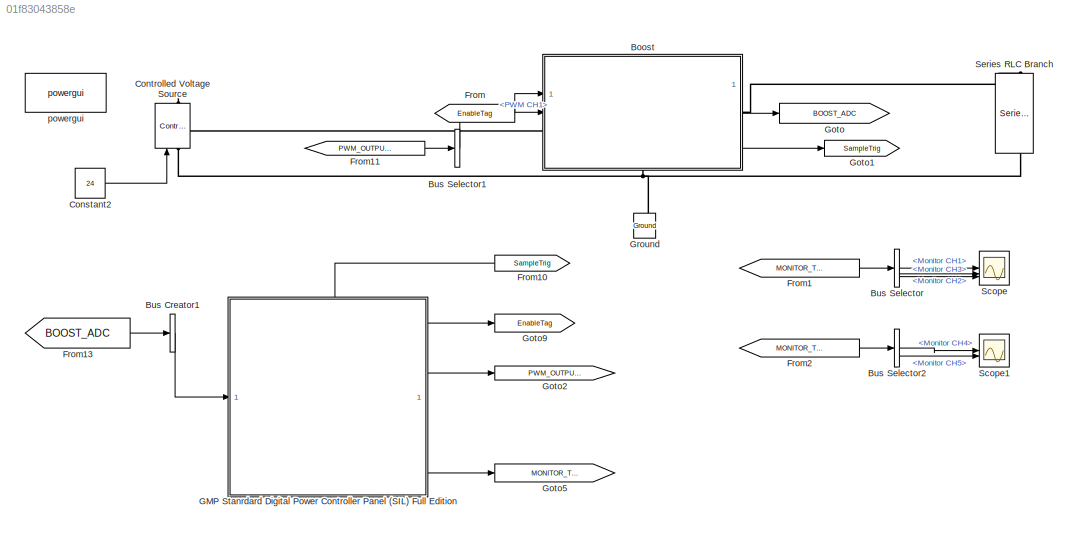
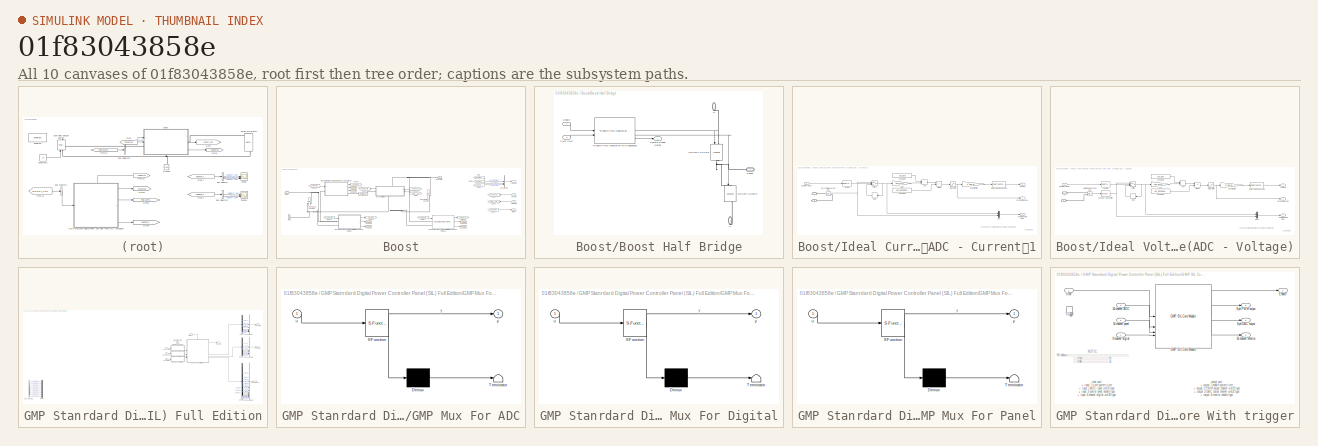
[diagram: thumbnail index - all 10 canvases of the model, root first then tree order]
MODEL slx_01f83043858e
KIND model
CONFIG AbsTol = auto
CONFIG EnableMultiTasking = off
CONFIG FixedStep = auto
CONFIG MaxStep = auto
CONFIG MinStep = auto
CONFIG RelTol = 1e-3
CONFIG SampleTimeConstraint = Unconstrained
CONFIG SolverName = VariableStepAuto
CONFIG StartTime = 0.0
CONFIG StopTime = 0.5
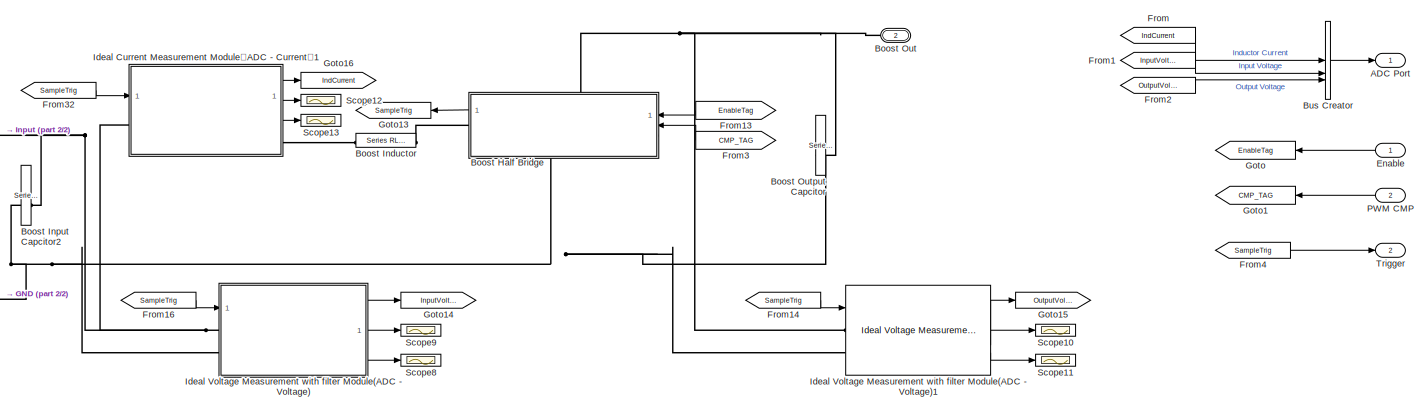
[diagram: Boost - part 1/2, most of the canvas]
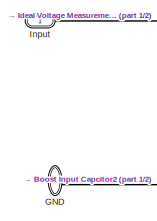
[diagram: Boost - part 2/2, middle left region]
BLOCK [SubSystem] Boost
  NameLocation = top
  PortSchema = {"entries":[{"content":{"sides":[{"content":{"connectorIds":["LConn1","In1","In2"]},"type":"ConnectorPlacement.EquallySpacedRectSide","uuid":"14f7e26c-4d08-496b-8d9c-39acdf23712e"},{"content":{"connectorIds":["RConn1","Out1","Out2"],"side":"RIGHT"},"type":"ConnectorPlacement.EquallySpacedRectSide","uuid":"c4fec36d-dc89-4255-810a-778c215f41bb"},{"content":{"side":"TOP"},"type":"ConnectorPlacement.E...<+405ch>
BLOCK [Outport] Boost/ADC Port
BLOCK [SubSystem] Boost/Boost Half Bridge
  PortSchema = {"entries":[{"content":{"sides":[{"content":{"connectorIds":["In1","In2"]},"type":"ConnectorPlacement.EquallySpacedRectSide","uuid":"20beeabc-b0ca-4337-b227-c7f02abd15d8"},{"content":{"connectorIds":["Out1","RConn1"],"side":"RIGHT"},"type":"ConnectorPlacement.EquallySpacedRectSide","uuid":"a7923383-ac55-4621-ad1d-4d067c1fb84d"},{"content":{"connectorIds":["LConn1"],"side":"TOP"},"type":"ConnectorP...<+415ch>
BLOCK [PMIOPort] Boost/Boost Half Bridge/D
  NameLocation = left
  Side = Left
BLOCK [Inport] Boost/Boost Half Bridge/Enable
BLOCK [Reference] Boost/Boost Half Bridge/MOSFET LOWER  REF=spsMosfetLib/Mosfet
  NameLocation = left
  SourceBlock = spsMosfetLib/Mosfet
  SourceType = Mosfet
BLOCK [Reference] Boost/Boost Half Bridge/MOSFET UPPER  REF=spsMosfetLib/Mosfet
  NameLocation = left
  SourceBlock = spsMosfetLib/Mosfet
  SourceType = Mosfet
BLOCK [Inport] Boost/Boost Half Bridge/PWM CMP
  Port = 2
BLOCK [PMIOPort] Boost/Boost Half Bridge/Phase
  Port = 2
  Side = Right
BLOCK [PMIOPort] Boost/Boost Half Bridge/S
  NameLocation = left
  Port = 3
  Side = Right
BLOCK [Outport] Boost/Boost Half Bridge/Sample Trigger Output
BLOCK [Reference] Boost/Boost Half Bridge/Triangle PWM modulation (with deadband)  REF=gmp_fp_utilities/Triangle PWM modulation (with deadband)
  SourceBlock = gmp_fp_utilities/Triangle PWM modulation (with deadband)
BLOCK [Reference] Boost/Boost Inductor  REF=spsSeriesRLCBranchLib/Series RLC Branch
  NameLocation = top
  SourceBlock = spsSeriesRLCBranchLib/Series RLC Branch
  SourceType = Series RLC Branch
BLOCK [Reference] Boost/Boost Input Capcitor2  REF=spsSeriesRLCBranchLib/Series RLC Branch
  NameLocation = left
  SourceBlock = spsSeriesRLCBranchLib/Series RLC Branch
  SourceType = Series RLC Branch
BLOCK [PMIOPort] Boost/Boost Out
  NameLocation = top
  Port = 2
  Side = Right
BLOCK [Reference] Boost/Boost Output Capcitor  REF=spsSeriesRLCBranchLib/Series RLC Branch
  NameLocation = left
  SourceBlock = spsSeriesRLCBranchLib/Series RLC Branch
  SourceType = Series RLC Branch
BLOCK [BusCreator] Boost/Bus Creator
  DisplayOption = bar
  InheritFromInputs = on
  Inputs = 3
BLOCK [Inport] Boost/Enable
  NameLocation = top
BLOCK [From] Boost/From
  GotoTag = IndCurrent
BLOCK [From] Boost/From1
  GotoTag = InputVoltage
BLOCK [From] Boost/From13
  GotoTag = EnableTag
  NameLocation = top
BLOCK [From] Boost/From14
  GotoTag = SampleTrig
  NameLocation = top
BLOCK [From] Boost/From16
  GotoTag = SampleTrig
  NameLocation = top
BLOCK [From] Boost/From2
  GotoTag = OutputVoltage
BLOCK [From] Boost/From3
  GotoTag = CMP_TAG
  NameLocation = top
BLOCK [From] Boost/From32
  GotoTag = SampleTrig
  NameLocation = top
BLOCK [From] Boost/From4
  GotoTag = SampleTrig
  NameLocation = top
BLOCK [PMIOPort] Boost/GND
  NameLocation = right
  Port = 3
  Side = Right
BLOCK [Goto] Boost/Goto
  GotoTag = EnableTag
BLOCK [Goto] Boost/Goto1
  GotoTag = CMP_TAG
BLOCK [Goto] Boost/Goto13
  GotoTag = SampleTrig
BLOCK [Goto] Boost/Goto14
  GotoTag = InputVoltage
  NameLocation = top
BLOCK [Goto] Boost/Goto15
  GotoTag = OutputVoltage
  NameLocation = top
BLOCK [Goto] Boost/Goto16
  GotoTag = IndCurrent
  NameLocation = top
BLOCK [SubSystem] Boost/Ideal Current Measurement Module（ADC - Current）1
BLOCK [PMIOPort] Boost/Ideal Current Measurement Module（ADC - Current）1/+
  Side = Left
BLOCK [PMIOPort] Boost/Ideal Current Measurement Module（ADC - Current）1/-
  NameLocation = top
  Port = 2
  Side = Right
BLOCK [Outport] Boost/Ideal Current Measurement Module（ADC - Current）1/ADC OUT
BLOCK [Sum] Boost/Ideal Current Measurement Module（ADC - Current）1/Add
  IconShape = rectangular
BLOCK [Constant] Boost/Ideal Current Measurement Module（ADC - Current）1/Constant4
  Value = ADC_BIAS
BLOCK [Constant] Boost/Ideal Current Measurement Module（ADC - Current）1/Constant5
  Value = ADC_REFERENCE
BLOCK [Reference] Boost/Ideal Current Measurement Module（ADC - Current）1/Current Measurement  REF=spsCurrentMeasurementLib/Current Measurement
  SourceBlock = spsCurrentMeasurementLib/Current Measurement
  SourceType = Current Measurement
  UserDataPersistent = on
BLOCK [DataTypeConversion] Boost/Ideal Current Measurement Module（ADC - Current）1/Data Type Conversion
  ConvertRealWorld = Stored Integer (SI)
  OutDataTypeStr = uint32
  RndMeth = Floor
  SaturateOnIntegerOverflow = off
BLOCK [Product] Boost/Ideal Current Measurement Module（ADC - Current）1/Divide
  Inputs = */
BLOCK [Gain] Boost/Ideal Current Measurement Module（ADC - Current）1/Gain1
  Gain = ADC_GAIN
BLOCK [Memory] Boost/Ideal Current Measurement Module（ADC - Current）1/Hold
  InitialCondition = ADC_INIT
  LinearizeAsDelay = on
  NameLocation = top
BLOCK [Mux] Boost/Ideal Current Measurement Module（ADC - Current）1/Mux
  DisplayOption = bar
  Inputs = 2
BLOCK [Gain] Boost/Ideal Current Measurement Module（ADC - Current）1/Quantization
  Gain = 2^ADC_BIT
BLOCK [DataTypeConversion] Boost/Ideal Current Measurement Module（ADC - Current）1/Sample
  OutDataTypeStr = boolean
  RndMeth = Floor
  SaturateOnIntegerOverflow = off
BLOCK [Outport] Boost/Ideal Current Measurement Module（ADC - Current）1/Sample & Hold View
  Port = 3
BLOCK [Inport] Boost/Ideal Current Measurement Module（ADC - Current）1/Sample Trigger
BLOCK [Saturate] Boost/Ideal Current Measurement Module（ADC - Current）1/Saturation
  LowerLimit = 0
  UpperLimit = 1
BLOCK [Outport] Boost/Ideal Current Measurement Module（ADC - Current）1/Scope View (p.u.)
  Port = 2
BLOCK [Switch] Boost/Ideal Current Measurement Module（ADC - Current）1/Switch
  Threshold = 0.5
BLOCK [SubSystem] Boost/Ideal Voltage Measurement with filter Module(ADC - Voltage)
  AncestorBlock = peripheral_utilities/Ideal Voltage Measurement with filter Module(ADC - Voltage)
BLOCK [PMIOPort] Boost/Ideal Voltage Measurement with filter Module(ADC - Voltage)/+
  Side = Left
BLOCK [PMIOPort] Boost/Ideal Voltage Measurement with filter Module(ADC - Voltage)/-
  Port = 2
  Side = Left
BLOCK [Outport] Boost/Ideal Voltage Measurement with filter Module(ADC - Voltage)/ADC OUT
BLOCK [Sum] Boost/Ideal Voltage Measurement with filter Module(ADC - Voltage)/Add
  IconShape = rectangular
BLOCK [Constant] Boost/Ideal Voltage Measurement with filter Module(ADC - Voltage)/Constant4
  Value = ADC_BIAS
BLOCK [Constant] Boost/Ideal Voltage Measurement with filter Module(ADC - Voltage)/Constant5
  Value = ADC_REFERENCE
BLOCK [DataTypeConversion] Boost/Ideal Voltage Measurement with filter Module(ADC - Voltage)/Data Type Conversion
  ConvertRealWorld = Stored Integer (SI)
  OutDataTypeStr = uint32
  RndMeth = Floor
  SaturateOnIntegerOverflow = off
BLOCK [Product] Boost/Ideal Voltage Measurement with filter Module(ADC - Voltage)/Divide
  Inputs = */
BLOCK [Gain] Boost/Ideal Voltage Measurement with filter Module(ADC - Voltage)/Gain1
  Gain = ADC_GAIN
BLOCK [Memory] Boost/Ideal Voltage Measurement with filter Module(ADC - Voltage)/Hold
  InitialCondition = ADC_INIT
  LinearizeAsDelay = on
  NameLocation = top
BLOCK [Mux] Boost/Ideal Voltage Measurement with filter Module(ADC - Voltage)/Mux1
  DisplayOption = bar
  Inputs = 2
BLOCK [Gain] Boost/Ideal Voltage Measurement with filter Module(ADC - Voltage)/Quantization
  Gain = 2^ADC_BIT
BLOCK [DataTypeConversion] Boost/Ideal Voltage Measurement with filter Module(ADC - Voltage)/Sample
  OutDataTypeStr = boolean
  RndMeth = Floor
  SaturateOnIntegerOverflow = off
BLOCK [Outport] Boost/Ideal Voltage Measurement with filter Module(ADC - Voltage)/Sample & Hold View
  Port = 3
BLOCK [Inport] Boost/Ideal Voltage Measurement with filter Module(ADC - Voltage)/Sample Trigger
BLOCK [Saturate] Boost/Ideal Voltage Measurement with filter Module(ADC - Voltage)/Saturation
  LowerLimit = 0
  UpperLimit = 1
BLOCK [Outport] Boost/Ideal Voltage Measurement with filter Module(ADC - Voltage)/Scope View (p.u.)
  Port = 2
BLOCK [Reference] Boost/Ideal Voltage Measurement with filter Module(ADC - Voltage)/Second-Order Filter  REF=spsSecondOrderFilterLib/Second-Order
Filter
  SourceBlock = spsSecondOrderFilterLib/Second-Order\nFilter
  SourceType = Second-Order Filter
BLOCK [Switch] Boost/Ideal Voltage Measurement with filter Module(ADC - Voltage)/Switch
  Threshold = 0.5
BLOCK [Reference] Boost/Ideal Voltage Measurement with filter Module(ADC - Voltage)/Voltage Measurement  REF=spsVoltageMeasurementLib/Voltage Measurement
  SourceBlock = spsVoltageMeasurementLib/Voltage Measurement
  SourceType = Voltage Measurement
  UserDataPersistent = on
BLOCK [Reference] Boost/Ideal Voltage Measurement with filter Module(ADC - Voltage)1  REF=gmp_peripheral_utilities/Ideal Voltage Measurement with filter Module (ADC - Voltage)
  SourceBlock = gmp_peripheral_utilities/Ideal Voltage Measurement with filter Module (ADC - Voltage)
  SourceProductName = Virtual Peripheral Utilities
BLOCK [PMIOPort] Boost/Input
  Side = Left
BLOCK [Inport] Boost/PWM CMP
  Port = 2
BLOCK [Scope] Boost/Scope10
  Floating = off
  NumInputPorts = 1
  ScopeSpecificationString = Simulink.scopes.TimeScopeBlockCfg('CurrentConfiguration', extmgr.ConfigurationSet(extmgr.Configuration('Core','General UI',true),extmgr.Configuration('Core','Source UI',true),extmgr.Configuration('Sources','WiredSimulink',true,'DataLoggingVariableName','ScopeData3'),extmgr.Configuration('Visuals','Time Domain',true),extmgr.Configuration('Tools','Plot Navigation',true),extmgr.Configuration('Tools',...<+40ch>
BLOCK [Scope] Boost/Scope11
  Floating = off
  NumInputPorts = 1
  ScopeSpecificationString = Simulink.scopes.TimeScopeBlockCfg('CurrentConfiguration', extmgr.ConfigurationSet(extmgr.Configuration('Core','General UI',true),extmgr.Configuration('Core','Source UI',true),extmgr.Configuration('Sources','WiredSimulink',true,'DataLoggingVariableName','ScopeData4'),extmgr.Configuration('Visuals','Time Domain',true,'SerializedDisplays',{struct('MinYLimReal','-6.20896','MaxYLimReal','55.88062','YLa...<+1658ch>
BLOCK [Scope] Boost/Scope12
  Floating = off
  NumInputPorts = 1
  ScopeSpecificationString = Simulink.scopes.TimeScopeBlockCfg('CurrentConfiguration', extmgr.ConfigurationSet(extmgr.Configuration('Core','General UI',true),extmgr.Configuration('Core','Source UI',true),extmgr.Configuration('Sources','WiredSimulink',true,'DataLoggingVariableName','ScopeData5'),extmgr.Configuration('Visuals','Time Domain',true),extmgr.Configuration('Tools','Plot Navigation',true),extmgr.Configuration('Tools',...<+40ch>
BLOCK [Scope] Boost/Scope13
  Floating = off
  NumInputPorts = 1
  ScopeSpecificationString = Simulink.scopes.TimeScopeBlockCfg('CurrentConfiguration', extmgr.ConfigurationSet(extmgr.Configuration('Core','General UI',true),extmgr.Configuration('Core','Source UI',true),extmgr.Configuration('Sources','WiredSimulink',true,'DataLoggingVariableName','ScopeData6'),extmgr.Configuration('Visuals','Time Domain',true,'SerializedDisplays',{struct('MinYLimReal','-1.75163','MaxYLimReal','15.76467','YLa...<+1656ch>
BLOCK [Scope] Boost/Scope8
  Floating = off
  NumInputPorts = 1
  ScopeSpecificationString = Simulink.scopes.TimeScopeBlockCfg('CurrentConfiguration', extmgr.ConfigurationSet(extmgr.Configuration('Core','General UI',true),extmgr.Configuration('Core','Source UI',true),extmgr.Configuration('Sources','WiredSimulink',true,'DataLoggingVariableName','ScopeData1'),extmgr.Configuration('Visuals','Time Domain',true,'SerializedDisplays',{struct('MinYLimReal','-3.12976','MaxYLimReal','28.16788','YLa...<+1656ch>
BLOCK [Scope] Boost/Scope9
  Floating = off
  NumInputPorts = 1
  ScopeSpecificationString = Simulink.scopes.TimeScopeBlockCfg('CurrentConfiguration', extmgr.ConfigurationSet(extmgr.Configuration('Core','General UI',true),extmgr.Configuration('Core','Source UI',true),extmgr.Configuration('Sources','WiredSimulink',true,'DataLoggingVariableName','ScopeData2'),extmgr.Configuration('Visuals','Time Domain',true),extmgr.Configuration('Tools','Plot Navigation',true),extmgr.Configuration('Tools',...<+40ch>
BLOCK [Outport] Boost/Trigger
  Port = 2
BLOCK [BusCreator] Bus Creator1
  DisplayOption = bar
  InheritFromInputs = on
  Inputs = 1
BLOCK [BusSelector] Bus Selector
  OutputSignals = Monitor CH1,Monitor CH2,Monitor CH3
BLOCK [BusSelector] Bus Selector1
  OutputSignals = PWM CH1
BLOCK [BusSelector] Bus Selector2
  OutputSignals = Monitor CH4,Monitor CH5
BLOCK [Constant] Constant2
  Value = 24
BLOCK [Reference] Controlled Voltage Source  REF=spsControlledVoltageSourceLib/Controlled Voltage Source
  LibrarySourceBlock = sps_lib/Sources/Controlled Voltage Source
  SourceBlock = spsControlledVoltageSourceLib/Controlled Voltage Source
  SourceType = Controlled Voltage Source
BLOCK [From] From
  GotoTag = EnableTag
BLOCK [From] From1
  GotoTag = MONITOR_TAG
BLOCK [From] From10
  GotoTag = SampleTrig
BLOCK [From] From11
  GotoTag = PWM_OUTPUT_TAG
BLOCK [From] From13
  GotoTag = BOOST_ADC
BLOCK [From] From2
  GotoTag = MONITOR_TAG
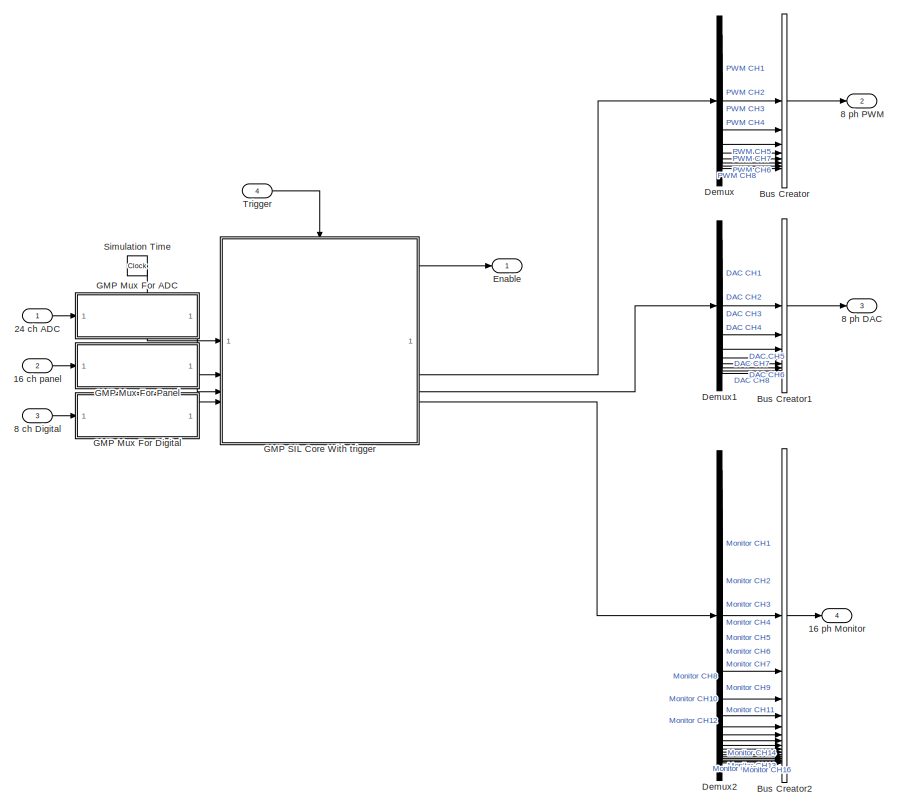
[diagram: GMP Stanrdard Digital Power Controller Panel (SIL) Full Edition - part 1/2, right side, full height]
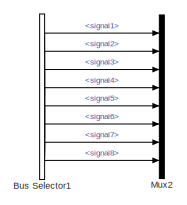
[diagram: GMP Stanrdard Digital Power Controller Panel (SIL) Full Edition - part 2/2, bottom left region]
BLOCK [SubSystem] GMP Stanrdard Digital Power Controller Panel (SIL) Full Edition
  PortSchema = {"entries":[{"content":{"sides":[{"content":{"connectorIds":["In1","In2","In3"]},"type":"ConnectorPlacement.EquallySpacedRectSide","uuid":"45c67bc9-9540-469a-a4ac-1e12eb9acca3"},{"content":{"connectorIds":["Out1","Out2","Out3","Out4"],"side":"RIGHT"},"type":"ConnectorPlacement.EquallySpacedRectSide","uuid":"a17116b4-0460-48ab-8ada-a785da6c5e29"},{"content":{"connectorIds":["In4"],"side":"TOP"},"ty...<+404ch>
BLOCK [Inport] GMP Stanrdard Digital Power Controller Panel (SIL) Full Edition/16 ch panel
  Port = 2
BLOCK [Outport] GMP Stanrdard Digital Power Controller Panel (SIL) Full Edition/16 ph Monitor
  Port = 4
BLOCK [Inport] GMP Stanrdard Digital Power Controller Panel (SIL) Full Edition/24 ch ADC
BLOCK [Inport] GMP Stanrdard Digital Power Controller Panel (SIL) Full Edition/8 ch Digital
  Port = 3
BLOCK [Outport] GMP Stanrdard Digital Power Controller Panel (SIL) Full Edition/8 ph DAC
  Port = 3
BLOCK [Outport] GMP Stanrdard Digital Power Controller Panel (SIL) Full Edition/8 ph PWM
  Port = 2
BLOCK [BusCreator] GMP Stanrdard Digital Power Controller Panel (SIL) Full Edition/Bus Creator
  DisplayOption = bar
  InheritFromInputs = on
  Inputs = 8
BLOCK [BusCreator] GMP Stanrdard Digital Power Controller Panel (SIL) Full Edition/Bus Creator1
  DisplayOption = bar
  InheritFromInputs = on
  Inputs = 8
BLOCK [BusCreator] GMP Stanrdard Digital Power Controller Panel (SIL) Full Edition/Bus Creator2
  DisplayOption = bar
  InheritFromInputs = on
  Inputs = 16
BLOCK [BusSelector] GMP Stanrdard Digital Power Controller Panel (SIL) Full Edition/Bus Selector1
  Commented = on
  OutputSignals = signal1,signal2,signal3,signal4,signal5,signal6,signal7,signal8
BLOCK [Demux] GMP Stanrdard Digital Power Controller Panel (SIL) Full Edition/Demux
  Outputs = 8
BLOCK [Demux] GMP Stanrdard Digital Power Controller Panel (SIL) Full Edition/Demux1
  Outputs = 8
BLOCK [Demux] GMP Stanrdard Digital Power Controller Panel (SIL) Full Edition/Demux2
  Outputs = 16
BLOCK [Outport] GMP Stanrdard Digital Power Controller Panel (SIL) Full Edition/Enable
BLOCK [SubSystem] GMP Stanrdard Digital Power Controller Panel (SIL) Full Edition/GMP Mux For ADC
  ErrorFcn = Stateflow.Translate.translate
  PermitHierarchicalResolution = ExplicitOnly
  SFBlockType = MATLAB Function
  TreatAsAtomicUnit = on
BLOCK [Demux] GMP Stanrdard Digital Power Controller Panel (SIL) Full Edition/GMP Mux For ADC/ Demux 
  Outputs = 1
BLOCK [S-Function] GMP Stanrdard Digital Power Controller Panel (SIL) Full Edition/GMP Mux For ADC/ SFunction 
  EnableBusSupport = on
  FunctionName = sf_sfun
  PortCounts = [1 2]
  SFcnIsStateOwnerBlock = off
  SFunctionDeploymentMode = off
  Tag = Stateflow S-Function 5
BLOCK [Terminator] GMP Stanrdard Digital Power Controller Panel (SIL) Full Edition/GMP Mux For ADC/ Terminator 
BLOCK [Inport] GMP Stanrdard Digital Power Controller Panel (SIL) Full Edition/GMP Mux For ADC/u
BLOCK [Outport] GMP Stanrdard Digital Power Controller Panel (SIL) Full Edition/GMP Mux For ADC/y
BLOCK [SubSystem] GMP Stanrdard Digital Power Controller Panel (SIL) Full Edition/GMP Mux For Digital
  ErrorFcn = Stateflow.Translate.translate
  PermitHierarchicalResolution = ExplicitOnly
  SFBlockType = MATLAB Function
  TreatAsAtomicUnit = on
BLOCK [Demux] GMP Stanrdard Digital Power Controller Panel (SIL) Full Edition/GMP Mux For Digital/ Demux 
  Outputs = 1
BLOCK [S-Function] GMP Stanrdard Digital Power Controller Panel (SIL) Full Edition/GMP Mux For Digital/ SFunction 
  EnableBusSupport = on
  FunctionName = sf_sfun
  PortCounts = [1 2]
  SFcnIsStateOwnerBlock = off
  SFunctionDeploymentMode = off
  Tag = Stateflow S-Function 3
BLOCK [Terminator] GMP Stanrdard Digital Power Controller Panel (SIL) Full Edition/GMP Mux For Digital/ Terminator 
BLOCK [Inport] GMP Stanrdard Digital Power Controller Panel (SIL) Full Edition/GMP Mux For Digital/u
BLOCK [Outport] GMP Stanrdard Digital Power Controller Panel (SIL) Full Edition/GMP Mux For Digital/y
BLOCK [SubSystem] GMP Stanrdard Digital Power Controller Panel (SIL) Full Edition/GMP Mux For Panel
  ErrorFcn = Stateflow.Translate.translate
  PermitHierarchicalResolution = ExplicitOnly
  SFBlockType = MATLAB Function
  TreatAsAtomicUnit = on
BLOCK [Demux] GMP Stanrdard Digital Power Controller Panel (SIL) Full Edition/GMP Mux For Panel/ Demux 
  Outputs = 1
BLOCK [S-Function] GMP Stanrdard Digital Power Controller Panel (SIL) Full Edition/GMP Mux For Panel/ SFunction 
  EnableBusSupport = on
  FunctionName = sf_sfun
  PortCounts = [1 2]
  SFcnIsStateOwnerBlock = off
  SFunctionDeploymentMode = off
  Tag = Stateflow S-Function 4
BLOCK [Terminator] GMP Stanrdard Digital Power Controller Panel (SIL) Full Edition/GMP Mux For Panel/ Terminator 
BLOCK [Inport] GMP Stanrdard Digital Power Controller Panel (SIL) Full Edition/GMP Mux For Panel/u
BLOCK [Outport] GMP Stanrdard Digital Power Controller Panel (SIL) Full Edition/GMP Mux For Panel/y
BLOCK [SubSystem] GMP Stanrdard Digital Power Controller Panel (SIL) Full Edition/GMP SIL Core With trigger
BLOCK [Outport] GMP Stanrdard Digital Power Controller Panel (SIL) Full Edition/GMP SIL Core With trigger/16 channel Monitor
  Port = 4
BLOCK [Inport] GMP Stanrdard Digital Power Controller Panel (SIL) Full Edition/GMP SIL Core With trigger/16 channel panel
  Port = 3
BLOCK [Inport] GMP Stanrdard Digital Power Controller Panel (SIL) Full Edition/GMP SIL Core With trigger/24 channel ADC
  Port = 2
BLOCK [Inport] GMP Stanrdard Digital Power Controller Panel (SIL) Full Edition/GMP SIL Core With trigger/8 channel digital
  Port = 4
BLOCK [Outport] GMP Stanrdard Digital Power Controller Panel (SIL) Full Edition/GMP SIL Core With trigger/8-ph DAC output
  Port = 3
BLOCK [Outport] GMP Stanrdard Digital Power Controller Panel (SIL) Full Edition/GMP SIL Core With trigger/8-ph PWM output
  Port = 2
BLOCK [Outport] GMP Stanrdard Digital Power Controller Panel (SIL) Full Edition/GMP SIL Core With trigger/Enable
BLOCK [Reference] GMP Stanrdard Digital Power Controller Panel (SIL) Full Edition/GMP SIL Core With trigger/GMP SIL Core Module  REF=gmp_sil_core_pack/GMP SIL Core Module
  SourceBlock = gmp_sil_core_pack/GMP SIL Core Module
  SourceProductName = GMP SIL Core Utilities
  SourceType = GMP CTL SIL Core
BLOCK [TriggerPort] GMP Stanrdard Digital Power Controller Panel (SIL) Full Edition/GMP SIL Core With trigger/Trigger
  PortDimensions = 1
  StatesWhenEnabling = held
  VariantControl = (inherit)
BLOCK [Inport] GMP Stanrdard Digital Power Controller Panel (SIL) Full Edition/GMP SIL Core With trigger/time
BLOCK [Mux] GMP Stanrdard Digital Power Controller Panel (SIL) Full Edition/Mux2
  Commented = on
  DisplayOption = bar
  Inputs = 8
BLOCK [Clock] GMP Stanrdard Digital Power Controller Panel (SIL) Full Edition/Simulation Time
BLOCK [Inport] GMP Stanrdard Digital Power Controller Panel (SIL) Full Edition/Trigger
  Port = 4
BLOCK [Goto] Goto
  GotoTag = BOOST_ADC
BLOCK [Goto] Goto1
  GotoTag = SampleTrig
  NameLocation = top
BLOCK [Goto] Goto2
  GotoTag = PWM_OUTPUT_TAG
BLOCK [Goto] Goto5
  GotoTag = MONITOR_TAG
BLOCK [Goto] Goto9
  GotoTag = EnableTag
  NameLocation = top
BLOCK [Reference] Ground  REF=spsGroundLib/Ground
  LibrarySourceBlock = sps_lib/Utilities/Ground
  NameLocation = right
  SourceBlock = spsGroundLib/Ground
  SourceType = Ground
BLOCK [Scope] Scope
  Floating = off
  NumInputPorts = 3
  ScopeSpecificationString = Simulink.scopes.TimeScopeBlockCfg('CurrentConfiguration', extmgr.ConfigurationSet(extmgr.Configuration('Core','General UI',true),extmgr.Configuration('Core','Source UI',true),extmgr.Configuration('Sources','WiredSimulink',true),extmgr.Configuration('Visuals','Time Domain',true,'SerializedDisplays',{struct('MinYLimReal','-0.20038','MaxYLimReal','1.80004','YLabelReal','','MinYLimMag','0.00000','MaxY...<+1500ch>
BLOCK [Scope] Scope1
  Floating = off
  NumInputPorts = 2
  ScopeSpecificationString = Simulink.scopes.TimeScopeBlockCfg('CurrentConfiguration', extmgr.ConfigurationSet(extmgr.Configuration('Core','General UI',true),extmgr.Configuration('Core','Source UI',true),extmgr.Configuration('Sources','WiredSimulink',true,'DataLoggingVariableName','ScopeData1'),extmgr.Configuration('Visuals','Time Domain',true),extmgr.Configuration('Tools','Plot Navigation',true),extmgr.Configuration('Tools',...<+40ch>
BLOCK [Reference] Series RLC Branch  REF=spsSeriesRLCBranchLib/Series RLC Branch
  LibrarySourceBlock = sps_lib/Passives/Series RLC Branch
  NameLocation = left
  SourceBlock = spsSeriesRLCBranchLib/Series RLC Branch
  SourceType = Series RLC Branch
BLOCK [Reference] powergui  REF=spspowerguiLib/powergui
  LibrarySourceBlock = sps_lib/powergui
  Priority = 1
  SourceBlock = spspowerguiLib/powergui
  SourceType = PSB option menu block
ANNOTATION Boost/Ideal Current Measurement Module（ADC - Current）1: 2024.08.28
ANNOTATION Boost/Ideal Current Measurement Module（ADC - Current）1: JavnSon Current Ideal Measurement(ADC module)
ANNOTATION Boost/Ideal Voltage Measurement with filter Module(ADC - Voltage): 2024.08.28
ANNOTATION Boost/Ideal Voltage Measurement with filter Module(ADC - Voltage): JavnSon Voltage Ideal Measurement(ADC module)
ANNOTATION GMP Stanrdard Digital Power Controller Panel (SIL) Full Edition/GMP SIL Core With trigger: NOTIC: Windows平台下必须设置为正确的内存对齐方式，否则会导致收到的数据乱码！ 对于X64的编译方式，默认的内存对齐为8； 对于X86的编译方式，默认的内存对齐为4。
ANNOTATION GMP Stanrdard Digital Power Controller Panel (SIL) Full Edition/GMP SIL Core With trigger: input port: + input 1 time system time + input 2 ADC input uint32 type + input 3 control panel double type + input 4 channel digital uint32 type
ANNOTATION GMP Stanrdard Digital Power Controller Panel (SIL) Full Edition/GMP SIL Core With trigger: output port: + output 1 enable system time + output 2 PWM output channel uint32 type + output 3 DAC output channel uint32 type + output 4 monitor double type
LINE Boost/Boost Half Bridge/Enable:1 -> Boost/Boost Half Bridge/Triangle PWM modulation (with deadband):1
LINE Boost/Boost Half Bridge/PWM CMP:1 -> Boost/Boost Half Bridge/Triangle PWM modulation (with deadband):2
LINE Boost/Boost Half Bridge/Triangle PWM modulation (with deadband):1 -> Boost/Boost Half Bridge/MOSFET UPPER:1
LINE Boost/Boost Half Bridge/Triangle PWM modulation (with deadband):2 -> Boost/Boost Half Bridge/MOSFET LOWER:1
LINE Boost/Boost Half Bridge/Triangle PWM modulation (with deadband):3 -> Boost/Boost Half Bridge/Sample Trigger Output:1
LINE Boost/Boost Half Bridge:1 -> Boost/Goto13:1
LINE Boost/Bus Creator:1 -> Boost/ADC Port:1
LINE Boost/Enable:1 -> Boost/Goto:1
LINE Boost/From13:1 -> Boost/Boost Half Bridge:1
LINE Boost/From14:1 -> Boost/Ideal Voltage Measurement with filter Module(ADC - Voltage)1:1
LINE Boost/From16:1 -> Boost/Ideal Voltage Measurement with filter Module(ADC - Voltage):1
LINE Boost/From1:1 -> Boost/Bus Creator:2
LINE Boost/From2:1 -> Boost/Bus Creator:3
LINE Boost/From32:1 -> Boost/Ideal Current Measurement Module（ADC - Current）1:1
LINE Boost/From3:1 -> Boost/Boost Half Bridge:2
LINE Boost/From4:1 -> Boost/Trigger:1
LINE Boost/From:1 -> Boost/Bus Creator:1
LINE Boost/Ideal Current Measurement Module（ADC - Current）1/Add:1 -> Boost/Ideal Current Measurement Module（ADC - Current）1/Divide:1
LINE Boost/Ideal Current Measurement Module（ADC - Current）1/Constant4:1 -> Boost/Ideal Current Measurement Module（ADC - Current）1/Add:1
LINE Boost/Ideal Current Measurement Module（ADC - Current）1/Constant5:1 -> Boost/Ideal Current Measurement Module（ADC - Current）1/Divide:2
NET Boost/Ideal Current Measurement Module（ADC - Current）1/Current Measurement:1 -> Boost/Ideal Current Measurement Module（ADC - Current）1/Mux:2, Boost/Ideal Current Measurement Module（ADC - Current）1/Switch:1
LINE Boost/Ideal Current Measurement Module（ADC - Current）1/Data Type Conversion:1 -> Boost/Ideal Current Measurement Module（ADC - Current）1/ADC OUT:1
LINE Boost/Ideal Current Measurement Module（ADC - Current）1/Divide:1 -> Boost/Ideal Current Measurement Module（ADC - Current）1/Saturation:1
LINE Boost/Ideal Current Measurement Module（ADC - Current）1/Gain1:1 -> Boost/Ideal Current Measurement Module（ADC - Current）1/Add:2
LINE Boost/Ideal Current Measurement Module（ADC - Current）1/Hold:1 -> Boost/Ideal Current Measurement Module（ADC - Current）1/Switch:3
LINE Boost/Ideal Current Measurement Module（ADC - Current）1/Mux:1 -> Boost/Ideal Current Measurement Module（ADC - Current）1/Sample & Hold View:1
LINE Boost/Ideal Current Measurement Module（ADC - Current）1/Quantization:1 -> Boost/Ideal Current Measurement Module（ADC - Current）1/Data Type Conversion:1
LINE Boost/Ideal Current Measurement Module（ADC - Current）1/Sample Trigger:1 -> Boost/Ideal Current Measurement Module（ADC - Current）1/Sample:1
LINE Boost/Ideal Current Measurement Module（ADC - Current）1/Sample:1 -> Boost/Ideal Current Measurement Module（ADC - Current）1/Switch:2
NET Boost/Ideal Current Measurement Module（ADC - Current）1/Saturation:1 -> Boost/Ideal Current Measurement Module（ADC - Current）1/Quantization:1, Boost/Ideal Current Measurement Module（ADC - Current）1/Scope View (p.u.):1
NET Boost/Ideal Current Measurement Module（ADC - Current）1/Switch:1 -> Boost/Ideal Current Measurement Module（ADC - Current）1/Gain1:1, Boost/Ideal Current Measurement Module（ADC - Current）1/Hold:1, Boost/Ideal Current Measurement Module（ADC - Current）1/Mux:1
LINE Boost/Ideal Current Measurement Module（ADC - Current）1:1 -> Boost/Goto16:1
LINE Boost/Ideal Current Measurement Module（ADC - Current）1:2 -> Boost/Scope12:1
LINE Boost/Ideal Current Measurement Module（ADC - Current）1:3 -> Boost/Scope13:1
LINE Boost/Ideal Voltage Measurement with filter Module(ADC - Voltage)1:1 -> Boost/Goto15:1
LINE Boost/Ideal Voltage Measurement with filter Module(ADC - Voltage)1:2 -> Boost/Scope10:1
LINE Boost/Ideal Voltage Measurement with filter Module(ADC - Voltage)1:3 -> Boost/Scope11:1
LINE Boost/Ideal Voltage Measurement with filter Module(ADC - Voltage):1 -> Boost/Goto14:1
LINE Boost/Ideal Voltage Measurement with filter Module(ADC - Voltage):2 -> Boost/Scope9:1
LINE Boost/Ideal Voltage Measurement with filter Module(ADC - Voltage):3 -> Boost/Scope8:1
LINE Boost/PWM CMP:1 -> Boost/Goto1:1
LINE Boost:1 -> Goto:1
LINE Boost:2 -> Goto1:1
LINE Bus Creator1:1 -> GMP Stanrdard Digital Power Controller Panel (SIL) Full Edition:1
LINE Bus Selector1:1 -> Boost:2
LINE Bus Selector2:1 -> Scope1:1
LINE Bus Selector2:2 -> Scope1:2
LINE Bus Selector:1 -> Scope:1
LINE Bus Selector:2 -> Scope:2
LINE Bus Selector:3 -> Scope:3
LINE Constant2:1 -> Controlled Voltage Source:1
LINE From10:1 -> GMP Stanrdard Digital Power Controller Panel (SIL) Full Edition:4
LINE From11:1 -> Bus Selector1:1
LINE From13:1 -> Bus Creator1:1
LINE From1:1 -> Bus Selector:1
LINE From2:1 -> Bus Selector2:1
LINE From:1 -> Boost:1
LINE GMP Stanrdard Digital Power Controller Panel (SIL) Full Edition/16 ch panel:1 -> GMP Stanrdard Digital Power Controller Panel (SIL) Full Edition/GMP Mux For Panel:1
LINE GMP Stanrdard Digital Power Controller Panel (SIL) Full Edition/24 ch ADC:1 -> GMP Stanrdard Digital Power Controller Panel (SIL) Full Edition/GMP Mux For ADC:1
LINE GMP Stanrdard Digital Power Controller Panel (SIL) Full Edition/8 ch Digital:1 -> GMP Stanrdard Digital Power Controller Panel (SIL) Full Edition/GMP Mux For Digital:1
LINE GMP Stanrdard Digital Power Controller Panel (SIL) Full Edition/Bus Creator1:1 -> GMP Stanrdard Digital Power Controller Panel (SIL) Full Edition/8 ph DAC:1
LINE GMP Stanrdard Digital Power Controller Panel (SIL) Full Edition/Bus Creator2:1 -> GMP Stanrdard Digital Power Controller Panel (SIL) Full Edition/16 ph Monitor:1
LINE GMP Stanrdard Digital Power Controller Panel (SIL) Full Edition/Bus Creator:1 -> GMP Stanrdard Digital Power Controller Panel (SIL) Full Edition/8 ph PWM:1
LINE GMP Stanrdard Digital Power Controller Panel (SIL) Full Edition/Bus Selector1:1 -> GMP Stanrdard Digital Power Controller Panel (SIL) Full Edition/Mux2:1
LINE GMP Stanrdard Digital Power Controller Panel (SIL) Full Edition/Bus Selector1:2 -> GMP Stanrdard Digital Power Controller Panel (SIL) Full Edition/Mux2:2
LINE GMP Stanrdard Digital Power Controller Panel (SIL) Full Edition/Bus Selector1:3 -> GMP Stanrdard Digital Power Controller Panel (SIL) Full Edition/Mux2:3
LINE GMP Stanrdard Digital Power Controller Panel (SIL) Full Edition/Bus Selector1:4 -> GMP Stanrdard Digital Power Controller Panel (SIL) Full Edition/Mux2:4
LINE GMP Stanrdard Digital Power Controller Panel (SIL) Full Edition/Bus Selector1:5 -> GMP Stanrdard Digital Power Controller Panel (SIL) Full Edition/Mux2:5
LINE GMP Stanrdard Digital Power Controller Panel (SIL) Full Edition/Bus Selector1:6 -> GMP Stanrdard Digital Power Controller Panel (SIL) Full Edition/Mux2:6
LINE GMP Stanrdard Digital Power Controller Panel (SIL) Full Edition/Bus Selector1:7 -> GMP Stanrdard Digital Power Controller Panel (SIL) Full Edition/Mux2:7
LINE GMP Stanrdard Digital Power Controller Panel (SIL) Full Edition/Bus Selector1:8 -> GMP Stanrdard Digital Power Controller Panel (SIL) Full Edition/Mux2:8
LINE GMP Stanrdard Digital Power Controller Panel (SIL) Full Edition/Demux1:1 -> GMP Stanrdard Digital Power Controller Panel (SIL) Full Edition/Bus Creator1:1
LINE GMP Stanrdard Digital Power Controller Panel (SIL) Full Edition/Demux1:2 -> GMP Stanrdard Digital Power Controller Panel (SIL) Full Edition/Bus Creator1:2
LINE GMP Stanrdard Digital Power Controller Panel (SIL) Full Edition/Demux1:3 -> GMP Stanrdard Digital Power Controller Panel (SIL) Full Edition/Bus Creator1:3
LINE GMP Stanrdard Digital Power Controller Panel (SIL) Full Edition/Demux1:4 -> GMP Stanrdard Digital Power Controller Panel (SIL) Full Edition/Bus Creator1:4
LINE GMP Stanrdard Digital Power Controller Panel (SIL) Full Edition/Demux1:5 -> GMP Stanrdard Digital Power Controller Panel (SIL) Full Edition/Bus Creator1:5
LINE GMP Stanrdard Digital Power Controller Panel (SIL) Full Edition/Demux1:6 -> GMP Stanrdard Digital Power Controller Panel (SIL) Full Edition/Bus Creator1:6
LINE GMP Stanrdard Digital Power Controller Panel (SIL) Full Edition/Demux1:7 -> GMP Stanrdard Digital Power Controller Panel (SIL) Full Edition/Bus Creator1:7
LINE GMP Stanrdard Digital Power Controller Panel (SIL) Full Edition/Demux1:8 -> GMP Stanrdard Digital Power Controller Panel (SIL) Full Edition/Bus Creator1:8
LINE GMP Stanrdard Digital Power Controller Panel (SIL) Full Edition/Demux2:1 -> GMP Stanrdard Digital Power Controller Panel (SIL) Full Edition/Bus Creator2:1
LINE GMP Stanrdard Digital Power Controller Panel (SIL) Full Edition/Demux2:10 -> GMP Stanrdard Digital Power Controller Panel (SIL) Full Edition/Bus Creator2:10
LINE GMP Stanrdard Digital Power Controller Panel (SIL) Full Edition/Demux2:11 -> GMP Stanrdard Digital Power Controller Panel (SIL) Full Edition/Bus Creator2:11
LINE GMP Stanrdard Digital Power Controller Panel (SIL) Full Edition/Demux2:12 -> GMP Stanrdard Digital Power Controller Panel (SIL) Full Edition/Bus Creator2:12
LINE GMP Stanrdard Digital Power Controller Panel (SIL) Full Edition/Demux2:13 -> GMP Stanrdard Digital Power Controller Panel (SIL) Full Edition/Bus Creator2:13
LINE GMP Stanrdard Digital Power Controller Panel (SIL) Full Edition/Demux2:14 -> GMP Stanrdard Digital Power Controller Panel (SIL) Full Edition/Bus Creator2:14
LINE GMP Stanrdard Digital Power Controller Panel (SIL) Full Edition/Demux2:15 -> GMP Stanrdard Digital Power Controller Panel (SIL) Full Edition/Bus Creator2:15
LINE GMP Stanrdard Digital Power Controller Panel (SIL) Full Edition/Demux2:16 -> GMP Stanrdard Digital Power Controller Panel (SIL) Full Edition/Bus Creator2:16
LINE GMP Stanrdard Digital Power Controller Panel (SIL) Full Edition/Demux2:2 -> GMP Stanrdard Digital Power Controller Panel (SIL) Full Edition/Bus Creator2:2
LINE GMP Stanrdard Digital Power Controller Panel (SIL) Full Edition/Demux2:3 -> GMP Stanrdard Digital Power Controller Panel (SIL) Full Edition/Bus Creator2:3
LINE GMP Stanrdard Digital Power Controller Panel (SIL) Full Edition/Demux2:4 -> GMP Stanrdard Digital Power Controller Panel (SIL) Full Edition/Bus Creator2:4
LINE GMP Stanrdard Digital Power Controller Panel (SIL) Full Edition/Demux2:5 -> GMP Stanrdard Digital Power Controller Panel (SIL) Full Edition/Bus Creator2:5
LINE GMP Stanrdard Digital Power Controller Panel (SIL) Full Edition/Demux2:6 -> GMP Stanrdard Digital Power Controller Panel (SIL) Full Edition/Bus Creator2:6
LINE GMP Stanrdard Digital Power Controller Panel (SIL) Full Edition/Demux2:7 -> GMP Stanrdard Digital Power Controller Panel (SIL) Full Edition/Bus Creator2:7
LINE GMP Stanrdard Digital Power Controller Panel (SIL) Full Edition/Demux2:8 -> GMP Stanrdard Digital Power Controller Panel (SIL) Full Edition/Bus Creator2:8
LINE GMP Stanrdard Digital Power Controller Panel (SIL) Full Edition/Demux2:9 -> GMP Stanrdard Digital Power Controller Panel (SIL) Full Edition/Bus Creator2:9
LINE GMP Stanrdard Digital Power Controller Panel (SIL) Full Edition/Demux:1 -> GMP Stanrdard Digital Power Controller Panel (SIL) Full Edition/Bus Creator:1
LINE GMP Stanrdard Digital Power Controller Panel (SIL) Full Edition/Demux:2 -> GMP Stanrdard Digital Power Controller Panel (SIL) Full Edition/Bus Creator:2
LINE GMP Stanrdard Digital Power Controller Panel (SIL) Full Edition/Demux:3 -> GMP Stanrdard Digital Power Controller Panel (SIL) Full Edition/Bus Creator:3
LINE GMP Stanrdard Digital Power Controller Panel (SIL) Full Edition/Demux:4 -> GMP Stanrdard Digital Power Controller Panel (SIL) Full Edition/Bus Creator:4
LINE GMP Stanrdard Digital Power Controller Panel (SIL) Full Edition/Demux:5 -> GMP Stanrdard Digital Power Controller Panel (SIL) Full Edition/Bus Creator:5
LINE GMP Stanrdard Digital Power Controller Panel (SIL) Full Edition/Demux:6 -> GMP Stanrdard Digital Power Controller Panel (SIL) Full Edition/Bus Creator:6
LINE GMP Stanrdard Digital Power Controller Panel (SIL) Full Edition/Demux:7 -> GMP Stanrdard Digital Power Controller Panel (SIL) Full Edition/Bus Creator:7
LINE GMP Stanrdard Digital Power Controller Panel (SIL) Full Edition/Demux:8 -> GMP Stanrdard Digital Power Controller Panel (SIL) Full Edition/Bus Creator:8
LINE GMP Stanrdard Digital Power Controller Panel (SIL) Full Edition/GMP Mux For ADC:1 -> GMP Stanrdard Digital Power Controller Panel (SIL) Full Edition/GMP SIL Core With trigger:2
LINE GMP Stanrdard Digital Power Controller Panel (SIL) Full Edition/GMP Mux For Digital:1 -> GMP Stanrdard Digital Power Controller Panel (SIL) Full Edition/GMP SIL Core With trigger:4
LINE GMP Stanrdard Digital Power Controller Panel (SIL) Full Edition/GMP Mux For Panel:1 -> GMP Stanrdard Digital Power Controller Panel (SIL) Full Edition/GMP SIL Core With trigger:3
LINE GMP Stanrdard Digital Power Controller Panel (SIL) Full Edition/GMP SIL Core With trigger/16 channel panel:1 -> GMP Stanrdard Digital Power Controller Panel (SIL) Full Edition/GMP SIL Core With trigger/GMP SIL Core Module:3
LINE GMP Stanrdard Digital Power Controller Panel (SIL) Full Edition/GMP SIL Core With trigger/24 channel ADC:1 -> GMP Stanrdard Digital Power Controller Panel (SIL) Full Edition/GMP SIL Core With trigger/GMP SIL Core Module:2
LINE GMP Stanrdard Digital Power Controller Panel (SIL) Full Edition/GMP SIL Core With trigger/8 channel digital:1 -> GMP Stanrdard Digital Power Controller Panel (SIL) Full Edition/GMP SIL Core With trigger/GMP SIL Core Module:4
LINE GMP Stanrdard Digital Power Controller Panel (SIL) Full Edition/GMP SIL Core With trigger/GMP SIL Core Module:1 -> GMP Stanrdard Digital Power Controller Panel (SIL) Full Edition/GMP SIL Core With trigger/Enable:1
LINE GMP Stanrdard Digital Power Controller Panel (SIL) Full Edition/GMP SIL Core With trigger/GMP SIL Core Module:2 -> GMP Stanrdard Digital Power Controller Panel (SIL) Full Edition/GMP SIL Core With trigger/8-ph PWM output:1
LINE GMP Stanrdard Digital Power Controller Panel (SIL) Full Edition/GMP SIL Core With trigger/GMP SIL Core Module:3 -> GMP Stanrdard Digital Power Controller Panel (SIL) Full Edition/GMP SIL Core With trigger/8-ph DAC output:1
LINE GMP Stanrdard Digital Power Controller Panel (SIL) Full Edition/GMP SIL Core With trigger/GMP SIL Core Module:4 -> GMP Stanrdard Digital Power Controller Panel (SIL) Full Edition/GMP SIL Core With trigger/16 channel Monitor:1
LINE GMP Stanrdard Digital Power Controller Panel (SIL) Full Edition/GMP SIL Core With trigger/time:1 -> GMP Stanrdard Digital Power Controller Panel (SIL) Full Edition/GMP SIL Core With trigger/GMP SIL Core Module:1
LINE GMP Stanrdard Digital Power Controller Panel (SIL) Full Edition/GMP SIL Core With trigger:1 -> GMP Stanrdard Digital Power Controller Panel (SIL) Full Edition/Enable:1
LINE GMP Stanrdard Digital Power Controller Panel (SIL) Full Edition/GMP SIL Core With trigger:2 -> GMP Stanrdard Digital Power Controller Panel (SIL) Full Edition/Demux:1
LINE GMP Stanrdard Digital Power Controller Panel (SIL) Full Edition/GMP SIL Core With trigger:3 -> GMP Stanrdard Digital Power Controller Panel (SIL) Full Edition/Demux1:1
LINE GMP Stanrdard Digital Power Controller Panel (SIL) Full Edition/GMP SIL Core With trigger:4 -> GMP Stanrdard Digital Power Controller Panel (SIL) Full Edition/Demux2:1
LINE GMP Stanrdard Digital Power Controller Panel (SIL) Full Edition/Simulation Time:1 -> GMP Stanrdard Digital Power Controller Panel (SIL) Full Edition/GMP SIL Core With trigger:1
LINE GMP Stanrdard Digital Power Controller Panel (SIL) Full Edition/Trigger:1 -> GMP Stanrdard Digital Power Controller Panel (SIL) Full Edition/GMP SIL Core With trigger:trigger
LINE GMP Stanrdard Digital Power Controller Panel (SIL) Full Edition:1 -> Goto9:1
LINE GMP Stanrdard Digital Power Controller Panel (SIL) Full Edition:2 -> Goto2:1
LINE GMP Stanrdard Digital Power Controller Panel (SIL) Full Edition:4 -> Goto5:1
PLINE Boost/Boost Half Bridge/D:RConn1 -- Boost/Boost Half Bridge/MOSFET UPPER:LConn1
PNET net1: Boost/Boost Half Bridge/MOSFET LOWER:LConn1 -- Boost/Boost Half Bridge/MOSFET UPPER:RConn1 -- Boost/Boost Half Bridge/Phase:RConn1
PLINE Boost/Boost Half Bridge/MOSFET LOWER:RConn1 -- Boost/Boost Half Bridge/S:RConn1
PNET net2: Boost/Boost Half Bridge:LConn1 -- Boost/Boost Out:RConn1 -- Boost/Boost Output Capcitor:LConn1 -- Boost/Ideal Voltage Measurement with filter Module(ADC - Voltage)1:LConn1
PLINE Boost/Boost Half Bridge:RConn1 -- Boost/Boost Inductor:RConn1
PNET net3: Boost/Boost Half Bridge:RConn2 -- Boost/Boost Input Capcitor2:RConn1 -- Boost/Boost Output Capcitor:RConn1 -- Boost/GND:RConn1 -- Boost/Ideal Voltage Measurement with filter Module(ADC - Voltage)1:LConn2 -- Boost/Ideal Voltage Measurement with filter Module(ADC - Voltage):LConn2
PLINE Boost/Boost Inductor:LConn1 -- Boost/Ideal Current Measurement Module（ADC - Current）1:RConn1
PNET net4: Boost/Boost Input Capcitor2:LConn1 -- Boost/Ideal Current Measurement Module（ADC - Current）1:LConn1 -- Boost/Ideal Voltage Measurement with filter Module(ADC - Voltage):LConn1 -- Boost/Input:RConn1
PLINE Boost/Ideal Current Measurement Module（ADC - Current）1/+:RConn1 -- Boost/Ideal Current Measurement Module（ADC - Current）1/Current Measurement:LConn1
PLINE Boost/Ideal Current Measurement Module（ADC - Current）1/-:RConn1 -- Boost/Ideal Current Measurement Module（ADC - Current）1/Current Measurement:RConn1
PLINE Boost:LConn1 -- Controlled Voltage Source:RConn1
PLINE Boost:RConn1 -- Series RLC Branch:LConn1
PNET net5: Boost:RConn2 -- Controlled Voltage Source:LConn1 -- Ground:LConn1 -- Series RLC Branch:RConn1
note: NET lines group one-source signal fan-out (src -> all destinations, sorted); 1:1 wires keep LINE; PNET lines group multi-terminal physical nets as a canonical sorted terminal list (undirected conserving connections); 2-terminal nets keep the pairwise PLINE form
CHART GMP Stanrdard Digital Power Controller Panel (SIL) Full Edition/GMP Mux For Panel states=1 transitions=1
  STATE_LABEL 'eML_blk_kernel()'
  STATE_LABEL "SCRIPT:\nfunction y = gmp_mux_util(u)\n\nsize = 16;\n\nsize_u = length(u);\n\n%typename_of_u = class(u(1));\ntypename_of_u = 'double';\n\nz = zeros(size- size_u, 1, typename_of_u);\n\ny = [u;z];\n"
CHART GMP Stanrdard Digital Power Controller Panel (SIL) Full Edition/GMP Mux For ADC states=1 transitions=1
  STATE_LABEL 'eML_blk_kernel()'
  STATE_LABEL "SCRIPT:\nfunction y = gmp_mux_util(u)\n\nsize = 24;\n\nsize_u = length(u);\n\n%typename_of_u = class(u(1));\ntypename_of_u = 'uint32';\n\nz = zeros(size- size_u, 1, typename_of_u);\n\ny = [u;z];\n"
CHART GMP Stanrdard Digital Power Controller Panel (SIL) Full Edition/GMP Mux For Digital states=1 transitions=1
  STATE_LABEL 'eML_blk_kernel()'
  STATE_LABEL "SCRIPT:\nfunction y = gmp_mux_util(u)\n\nsize = 8;\n\nsize_u = length(u);\n\n%typename_of_u = class(u(1));\ntypename_of_u = 'int32';\n\nz = zeros(size- size_u, 1, typename_of_u);\n\ny = [u;z];\n"
CHART  states=0 transitions=0
CHART  states=0 transitions=0
CHART  states=0 transitions=0
